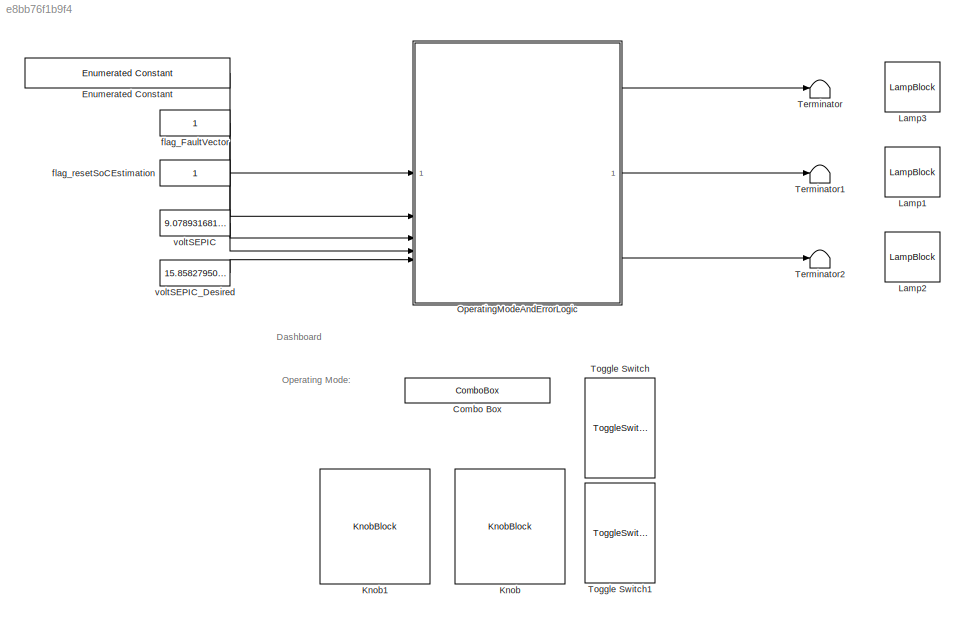
MODEL slx_e8bb76f1b9f4
KIND model
CONFIG AbsTol = auto
CONFIG EnableMultiTasking = off
CONFIG FixedStep = auto
CONFIG MaxStep = auto
CONFIG MinStep = auto
CONFIG RelTol = 1e-3
CONFIG SampleTimeConstraint = Unconstrained
CONFIG SolverName = VariableStepAuto
CONFIG StartTime = 0.0
CONFIG StopTime = inf
BLOCK [ComboBox] Combo Box
  EnumeratedDataType = operatingMode
  LabelPosition = Hide
  SelectedLabel = AllClosedLoop
  UseEnumeratedDataType = on
BLOCK [Reference] Enumerated Constant  REF=simulink/Sources/Enumerated
Constant
  SourceBlock = simulink/Sources/Enumerated\nConstant
  SourceType = Enumerated Constant
BLOCK [KnobBlock] Knob
  ScaleMax = 20
BLOCK [KnobBlock] Knob1
  ScaleMax = 20
BLOCK [LampBlock] Lamp1
  LabelPosition = Hide
BLOCK [LampBlock] Lamp2
  LabelPosition = Hide
BLOCK [LampBlock] Lamp3
  LabelPosition = Hide
BLOCK [SubSystem] OperatingModeAndErrorLogic
  ReferencedSubsystem = OperatingModeAndErrorLogic
BLOCK [Terminator] Terminator
BLOCK [Terminator] Terminator1
BLOCK [Terminator] Terminator2
BLOCK [ToggleSwitchBlock] Toggle Switch
BLOCK [ToggleSwitchBlock] Toggle Switch1
BLOCK [Constant] flag_FaultVector
  OutDataTypeStr = boolean
BLOCK [Constant] flag_resetSoCEstimation
  OutDataTypeStr = boolean
BLOCK [Constant] voltSEPIC
  OutDataTypeStr = single
  Value = 9.078931681315105
BLOCK [Constant] voltSEPIC_Desired
  OutDataTypeStr = single
  Value = 15.85827950747868
ANNOTATION (root): Dashboard
ANNOTATION (root): Operating Mode:
LINE Enumerated Constant:1 -> OperatingModeAndErrorLogic:1
LINE OperatingModeAndErrorLogic:1 -> Terminator:1
LINE OperatingModeAndErrorLogic:2 -> Terminator1:1
LINE OperatingModeAndErrorLogic:3 -> Terminator2:1
LINE flag_FaultVector:1 -> OperatingModeAndErrorLogic:2
LINE flag_resetSoCEstimation:1 -> OperatingModeAndErrorLogic:3
LINE voltSEPIC:1 -> OperatingModeAndErrorLogic:4
LINE voltSEPIC_Desired:1 -> OperatingModeAndErrorLogic:5
